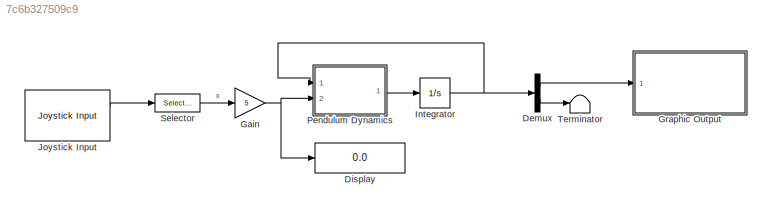
MODEL slx_7c6b327509c9
KIND model
CONFIG AbsTol = auto
CONFIG EnableMultiTasking = off
CONFIG FixedStep = auto
CONFIG MaxStep = auto
CONFIG MinStep = auto
CONFIG RelTol = 1e-3
CONFIG SampleTimeConstraint = Unconstrained
CONFIG SolverName = VariableStepAuto
CONFIG StartFcn = AnimationInit;
CONFIG StartTime = 0.0
CONFIG StopTime = 100
BLOCK [Demux] Demux
  Outputs = 2
  Ports = [1, 2]
BLOCK [Display] Display
  Decimation = 1
  Ports = [1]
BLOCK [Gain] Gain
  Gain = 5
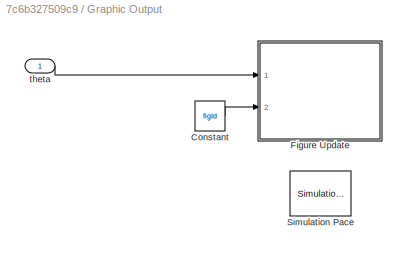
BLOCK [SubSystem] Graphic Output
  Ports = [1]
  RequestExecContextInheritance = off
BLOCK [Constant] Graphic Output/Constant
  Value = figId
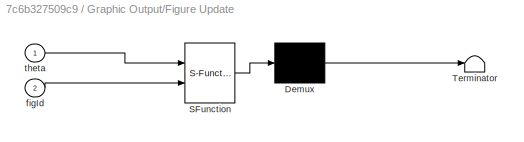
BLOCK [SubSystem] Graphic Output/Figure Update
  ErrorFcn = Stateflow.Translate.translate
  PermitHierarchicalResolution = ExplicitOnly
  Ports = [2]
  RequestExecContextInheritance = off
  SFBlockType = MATLAB Function
  TreatAsAtomicUnit = on
BLOCK [Demux] Graphic Output/Figure Update/ Demux 
  Outputs = 1
  Ports = [1, 1]
BLOCK [S-Function] Graphic Output/Figure Update/ SFunction 
  EnableBusSupport = on
  FunctionName = sf_sfun
  PortCounts = [2 1]
  Ports = [2, 1]
  SFcnIsStateOwnerBlock = off
  SFunctionDeploymentMode = off
  Tag = Stateflow S-Function 1
BLOCK [Terminator] Graphic Output/Figure Update/ Terminator 
BLOCK [Inport] Graphic Output/Figure Update/figId
  Port = 2
BLOCK [Inport] Graphic Output/Figure Update/theta
BLOCK [Reference] Graphic Output/Simulation Pace  REF=aerolibanimutils/Simulation Pace
  AttributesFormatString = %<SleepMode>\n%<SimulationPace> sec/sec
  Ports = []
  SourceBlock = aerolibanimutils/Simulation Pace
  SourceProductBaseCode = AE
  SourceType = Simulation Pace
BLOCK [Inport] Graphic Output/theta
BLOCK [Integrator] Integrator
  InitialCondition = [175*pi/180;0]
  Ports = [1, 1]
BLOCK [Reference] Joystick Input  REF=vrlib/Joystick Input
  Ports = [0, 2]
  SourceBlock = vrlib/Joystick Input
  SourceProductBaseCode = SL
  SourceType = Joystick Input
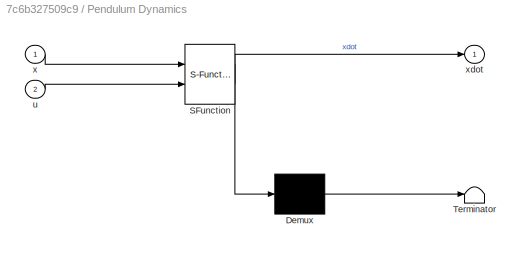
BLOCK [SubSystem] Pendulum Dynamics
  ErrorFcn = Stateflow.Translate.translate
  PermitHierarchicalResolution = ExplicitOnly
  Ports = [2, 1]
  RequestExecContextInheritance = off
  SFBlockType = MATLAB Function
  TreatAsAtomicUnit = on
BLOCK [Demux] Pendulum Dynamics/ Demux 
  Outputs = 1
  Ports = [1, 1]
BLOCK [S-Function] Pendulum Dynamics/ SFunction 
  EnableBusSupport = on
  FunctionName = sf_sfun
  PortCounts = [2 2]
  Ports = [2, 2]
  SFcnIsStateOwnerBlock = off
  SFunctionDeploymentMode = off
  Tag = Stateflow S-Function 2
BLOCK [Terminator] Pendulum Dynamics/ Terminator 
BLOCK [Inport] Pendulum Dynamics/u
  Port = 2
BLOCK [Inport] Pendulum Dynamics/x
BLOCK [Outport] Pendulum Dynamics/xdot
BLOCK [Selector] Selector
  IndexOptions = Index vector (dialog)
  Indices = 3
  OutputSizes = 1
  Ports = [1, 1]
BLOCK [Terminator] Terminator
LINE Demux:1 -> Graphic Output:1
LINE Demux:2 -> Terminator:1
NET Gain:1 -> Display:1, Pendulum Dynamics:2
LINE Graphic Output/Constant:1 -> Graphic Output/Figure Update:2
LINE Graphic Output/theta:1 -> Graphic Output/Figure Update:1
NET Integrator:1 -> Demux:1, Pendulum Dynamics:1
LINE Joystick Input:1 -> Selector:1
LINE Pendulum Dynamics:1 -> Integrator:1
LINE Selector:1 -> Gain:1
note: NET lines group one-source signal fan-out (src -> all destinations, sorted); 1:1 wires keep LINE
CHART Pendulum Dynamics states=1 transitions=1
  STATE_LABEL 'eML_blk_kernel()'
  STATE_LABEL 'SCRIPT:\nfunction xdot = pendulum(x,u)\n\nL = 1;\ng = 10;\nb = 0.5;\n\nxdot = zeros(2,1);\nxdot(1) = x(2);\nxdot(2) = -g/L*sin(x(1)) - b*x(2) + u;\n'
CHART Graphic Output/Figure Update states=1 transitions=1
  STATE_LABEL 'eML_blk_kernel()'
  STATE_LABEL "SCRIPT:\nfunction updateFigure(theta, figId)\n\nL = 1;\n\n% drawing rod\ndx = [0;L*sin(theta)];\ndy = [0;-L*cos(theta)];\nUpdatePlot(figId,'rod',dx,dy);\n% drawing pendulum ball\ndx = [L*sin(theta)];\ndy = [-L*cos(theta)];\nUpdatePlot(figId,'ball',dx,dy);\n\ndrawnow;\n\nend\n\nfunction UpdatePlot(hFig, plotTag, xData, yData)\n    plotTarget = findobj(hFig, 'Tag', plotTag);\n    set(plotTarget, 'XData', xData);\n    se...<+34ch>"
CHART  states=0 transitions=0
CHART  states=0 transitions=0
